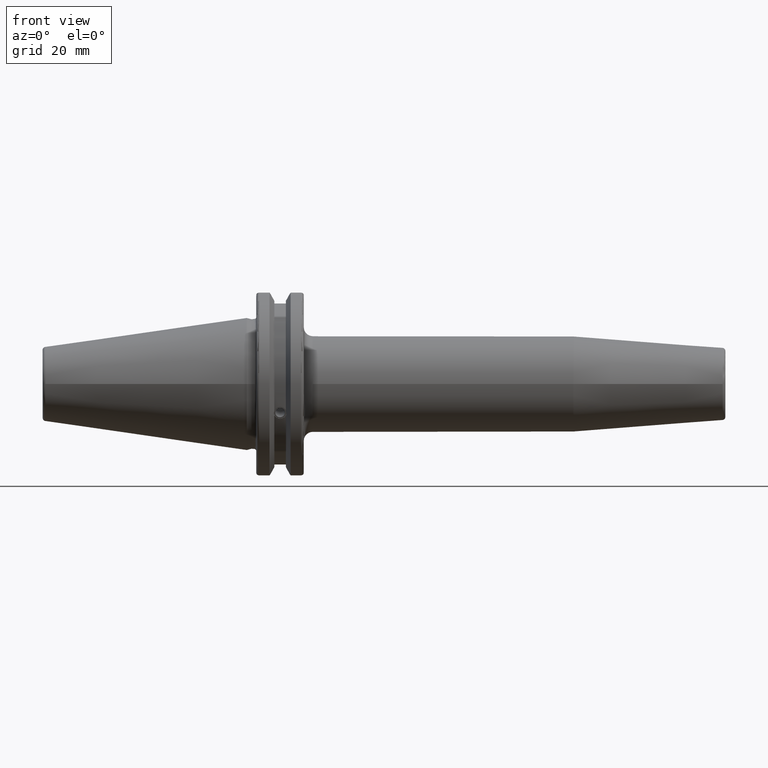
[diagram: clean part render]
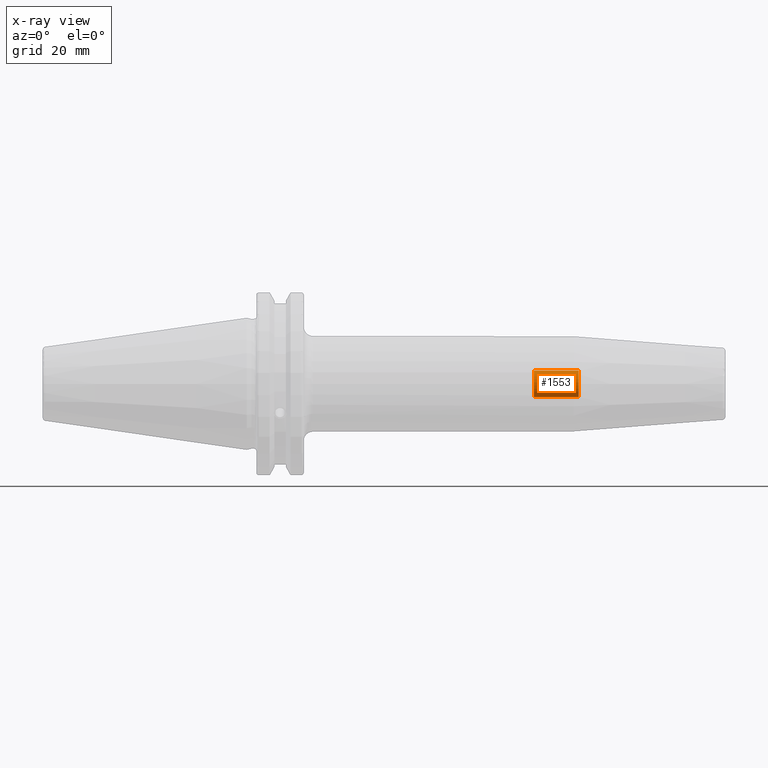
[diagram: x-ray — body ghosted, one internal face saturated and labeled with its STEP entity id]
A machine part, front view, then the same camera in x-ray: the body is ghosted and one INTERNAL B-rep face — a face not visible from any outside direction — is saturated and labeled: STEP entity #1553.
In plain terms, the highlighted cylindrical surface (bore or boss wall) has radius 4.4587 mm, axis along (1, 0, 0).
Its self-contained STEP definition (entity closure, byte-faithful):
#89=LINE('',#2403,#185);
#185=VECTOR('',#1931,4.458734);
#270=CYLINDRICAL_SURFACE('',#1688,4.458734);
#386=FACE_OUTER_BOUND('',#482,.T.);
#482=EDGE_LOOP('',(#1109,#1110,#1111,#1112,#1113));
#594=CIRCLE('',#1689,4.458734);
#595=CIRCLE('',#1690,4.458734);
#596=CIRCLE('',#1691,4.458734);
#681=VERTEX_POINT('',#2400);
#682=VERTEX_POINT('',#2402);
#683=VERTEX_POINT('',#2404);
#847=EDGE_CURVE('',#681,#681,#594,.T.);
#848=EDGE_CURVE('',#681,#682,#89,.T.);
#849=EDGE_CURVE('',#683,#682,#595,.T.);
#850=EDGE_CURVE('',#682,#683,#596,.T.);
#1109=ORIENTED_EDGE('',*,*,#847,.F.);
#1110=ORIENTED_EDGE('',*,*,#848,.T.);
#1111=ORIENTED_EDGE('',*,*,#849,.F.);
#1112=ORIENTED_EDGE('',*,*,#850,.F.);
#1113=ORIENTED_EDGE('',*,*,#848,.F.);
#1553=ADVANCED_FACE('',(#386),#270,.F.);
#1688=AXIS2_PLACEMENT_3D('',#2399,#1927,#1928);
#1689=AXIS2_PLACEMENT_3D('',#2401,#1929,#1930);
#1690=AXIS2_PLACEMENT_3D('',#2405,#1932,#1933);
#1691=AXIS2_PLACEMENT_3D('',#2406,#1934,#1935);
#1927=DIRECTION('center_axis',(1.,0.,0.));
#1928=DIRECTION('ref_axis',(0.,0.,-1.));
#1929=DIRECTION('center_axis',(-1.,0.,0.));
#1930=DIRECTION('ref_axis',(0.,0.,-1.));
#1931=DIRECTION('',(-1.,0.,0.));
#1932=DIRECTION('center_axis',(1.,0.,0.));
#1933=DIRECTION('ref_axis',(0.,0.,-1.));
#1934=DIRECTION('center_axis',(1.,0.,0.));
#1935=DIRECTION('ref_axis',(0.,0.,-1.));
#2399=CARTESIAN_POINT('Origin',(98.45,0.,0.));
#2400=CARTESIAN_POINT('',(111.,-5.46037432134947E-16,4.458734));
#2401=CARTESIAN_POINT('Origin',(111.,0.,0.));
#2402=CARTESIAN_POINT('',(95.9765163523599,-5.46037432134947E-16,4.458734));
#2403=CARTESIAN_POINT('',(98.45,-5.46037432134947E-16,4.458734));
#2404=CARTESIAN_POINT('',(95.9765163523599,-5.46037432134947E-16,-4.458734));
#2405=CARTESIAN_POINT('Origin',(95.9765163523599,0.,0.));
#2406=CARTESIAN_POINT('Origin',(95.9765163523599,0.,0.));